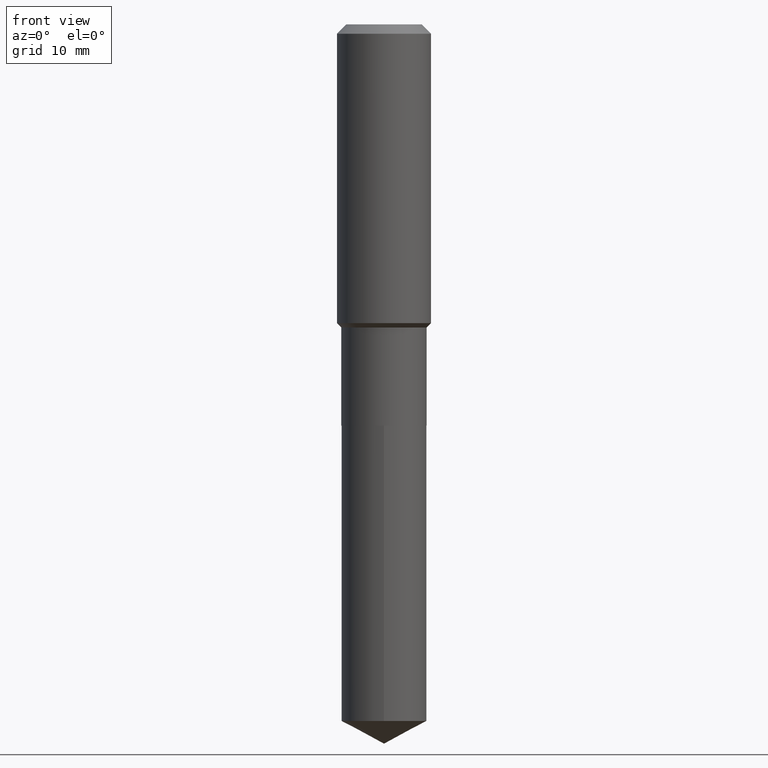
[diagram: clean part render]
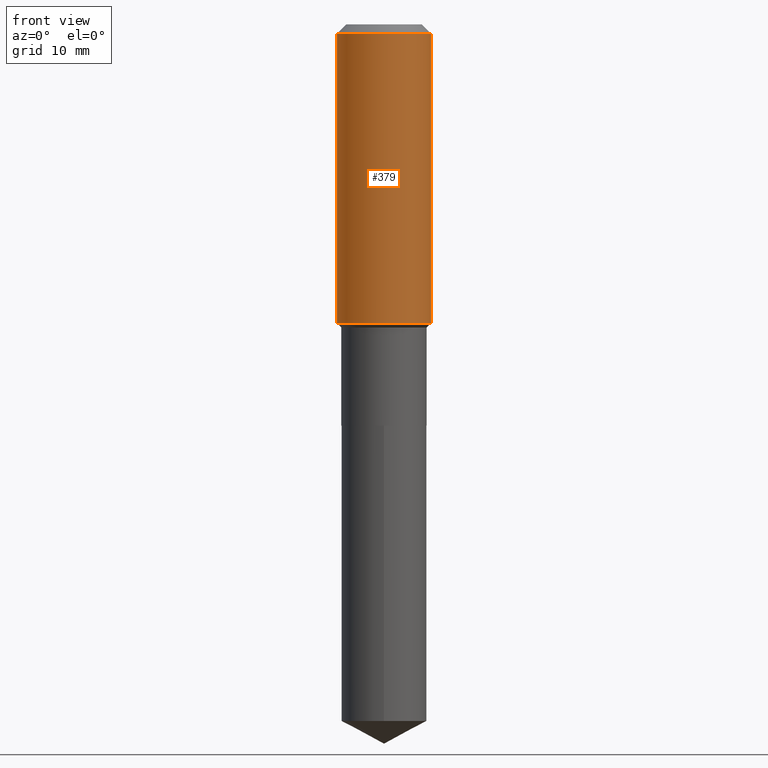
[diagram: same view with one face highlighted and labeled with its STEP entity id]
A machine part, front view. The second image highlights one B-rep face of the part: STEP entity #379.
In plain terms, the highlighted cylindrical surface (partial cylindrical patch) has radius 7.0002 mm, axis along (-0, 0, 1).
Its self-contained STEP definition (entity closure, byte-faithful):
#4 = VERTEX_POINT ( 'NONE', #471 ) ;
#28 = AXIS2_PLACEMENT_3D ( 'NONE', #353, #67, #326 ) ;
#52 = VERTEX_POINT ( 'NONE', #61 ) ;
#53 = DIRECTION ( 'NONE',  ( -2.445468806185136597E-29, 3.491481338843145583E-15, 1.000000000000000000 ) ) ;
#55 = EDGE_CURVE ( 'NONE', #316, #4, #435, .T. ) ;
#61 = CARTESIAN_POINT ( 'NONE',  ( -0.2756000000000000116, -1.192666469297548903E-15, -0.05512000000000035621 ) ) ;
#67 = DIRECTION ( 'NONE',  ( -2.445468806185136597E-29, 3.491481338843145583E-15, 1.000000000000000000 ) ) ;
#76 = CARTESIAN_POINT ( 'NONE',  ( 0.2756000000000001227, -1.924504513970336137E-15, 1.343874319409360548E-29 ) ) ;
#85 = CARTESIAN_POINT ( 'NONE',  ( 0.000000000000000000, 0.000000000000000000, 0.000000000000000000 ) ) ;
#91 = EDGE_LOOP ( 'NONE', ( #473, #182, #122, #378 ) ) ;
#92 = LINE ( 'NONE', #234, #98 ) ;
#98 = VECTOR ( 'NONE', #108, 39.37007874015748143 ) ;
#108 = DIRECTION ( 'NONE',  ( -2.445468806185136877E-29, 3.491481338843145188E-15, 1.000000000000000000 ) ) ;
#116 = DIRECTION ( 'NONE',  ( -2.445468806185136877E-29, 3.491481338843145188E-15, 1.000000000000000000 ) ) ;
#122 = ORIENTED_EDGE ( 'NONE', *, *, #339, .T. ) ;
#123 = CARTESIAN_POINT ( 'NONE',  ( -0.2756000000000002337, -4.151138266952898691E-15, -1.749800000000000244 ) ) ;
#166 = CARTESIAN_POINT ( 'NONE',  ( 4.279081317062752596E-29, -6.109394046707736858E-15, -1.749800000000000244 ) ) ;
#182 = ORIENTED_EDGE ( 'NONE', *, *, #55, .T. ) ;
#191 = EDGE_CURVE ( 'NONE', #52, #312, #361, .T. ) ;
#199 = FACE_OUTER_BOUND ( 'NONE', #91, .T. ) ;
#203 = CARTESIAN_POINT ( 'NONE',  ( 0.2756000000000000116, -2.116954965367370658E-15, -0.05512000000000035621 ) ) ;
#216 = AXIS2_PLACEMENT_3D ( 'NONE', #85, #53, #270 ) ;
#223 = CYLINDRICAL_SURFACE ( 'NONE', #216, 0.2756000000000001227 ) ;
#234 = CARTESIAN_POINT ( 'NONE',  ( -0.2756000000000001227, 1.958255779754836984E-15, -1.355658510874252567E-29 ) ) ;
#241 = VECTOR ( 'NONE', #116, 39.37007874015748143 ) ;
#264 = LINE ( 'NONE', #76, #241 ) ;
#270 = DIRECTION ( 'NONE',  ( 1.000000000000000000, -6.982962677686267499E-15, 4.876176775795935793E-29 ) ) ;
#283 = AXIS2_PLACEMENT_3D ( 'NONE', #166, #287, #394 ) ;
#287 = DIRECTION ( 'NONE',  ( -2.445468806185136597E-29, 3.491481338843145583E-15, 1.000000000000000000 ) ) ;
#306 = EDGE_CURVE ( 'NONE', #316, #52, #92, .T. ) ;
#312 = VERTEX_POINT ( 'NONE', #203 ) ;
#316 = VERTEX_POINT ( 'NONE', #123 ) ;
#326 = DIRECTION ( 'NONE',  ( 1.000000000000000000, -6.982962677686265922E-15, 0.000000000000000000 ) ) ;
#339 = EDGE_CURVE ( 'NONE', #4, #312, #264, .T. ) ;
#353 = CARTESIAN_POINT ( 'NONE',  ( 1.347942405969256063E-30, -1.924504513970354330E-16, -0.05512000000000035621 ) ) ;
#361 = CIRCLE ( 'NONE', #28, 0.2756000000000000116 ) ;
#378 = ORIENTED_EDGE ( 'NONE', *, *, #191, .F. ) ;
#379 = ADVANCED_FACE ( 'NONE', ( #199 ), #223, .T. ) ;
#394 = DIRECTION ( 'NONE',  ( 1.000000000000000000, -6.982962677686267499E-15, 0.000000000000000000 ) ) ;
#435 = CIRCLE ( 'NONE', #283, 0.2756000000000002337 ) ;
#471 = CARTESIAN_POINT ( 'NONE',  ( 0.2756000000000002337, -8.033898560678073390E-15, -1.749800000000000244 ) ) ;
#473 = ORIENTED_EDGE ( 'NONE', *, *, #306, .F. ) ;